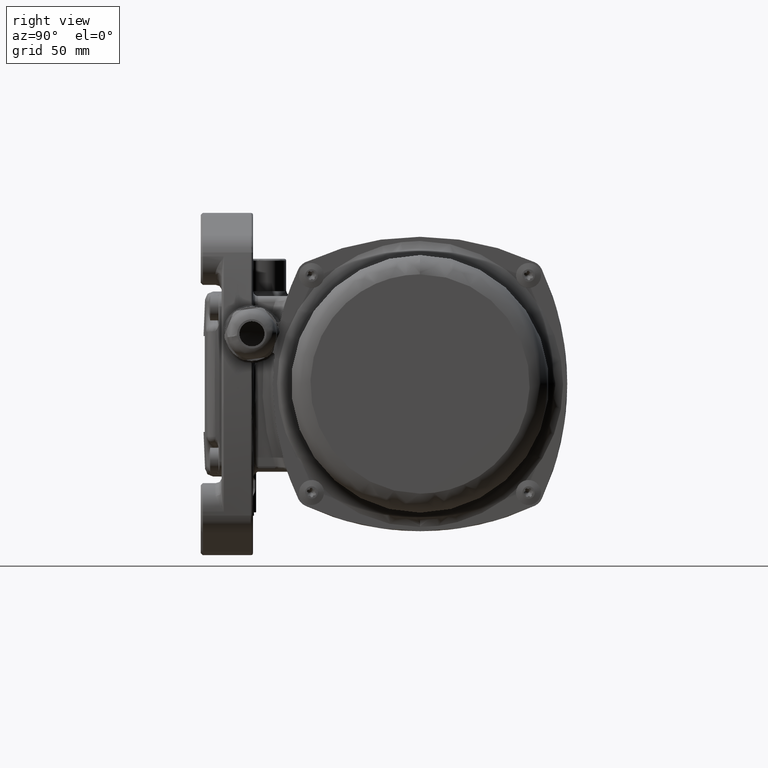
[diagram: clean part render]
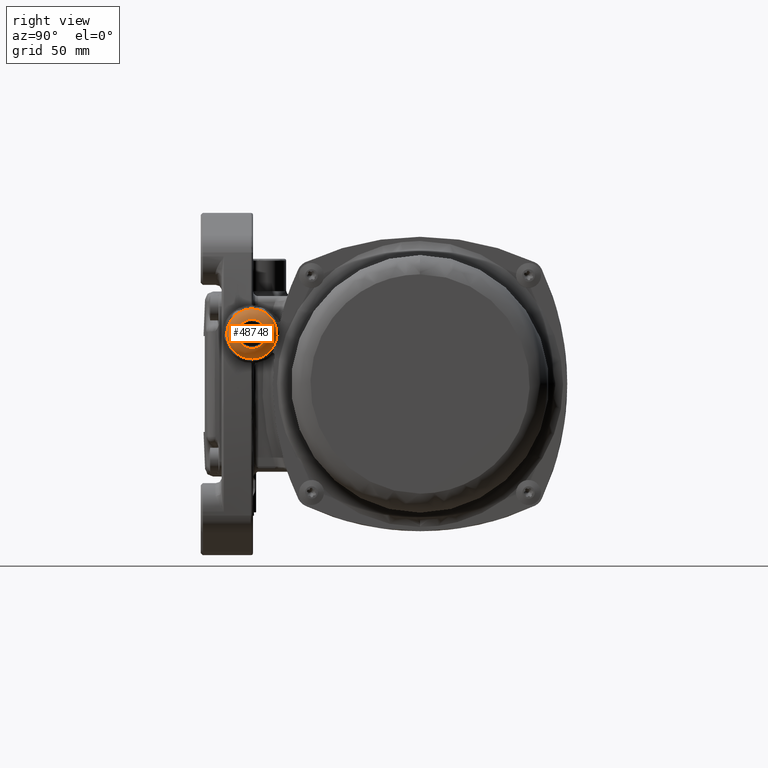
[diagram: same view with one face highlighted and labeled with its STEP entity id]
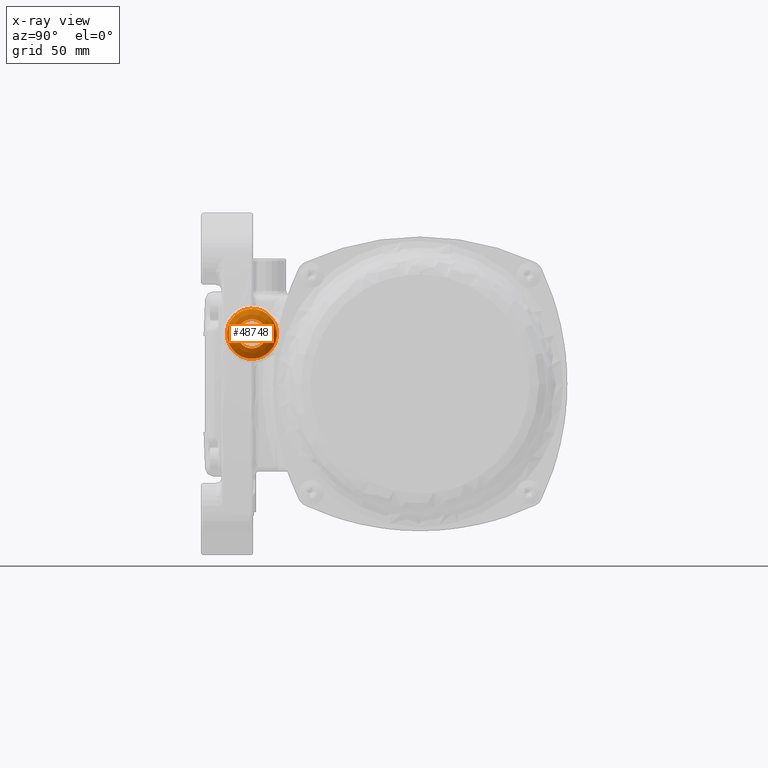
[diagram: x-ray of the same camera — body ghosted, the highlighted face saturated]
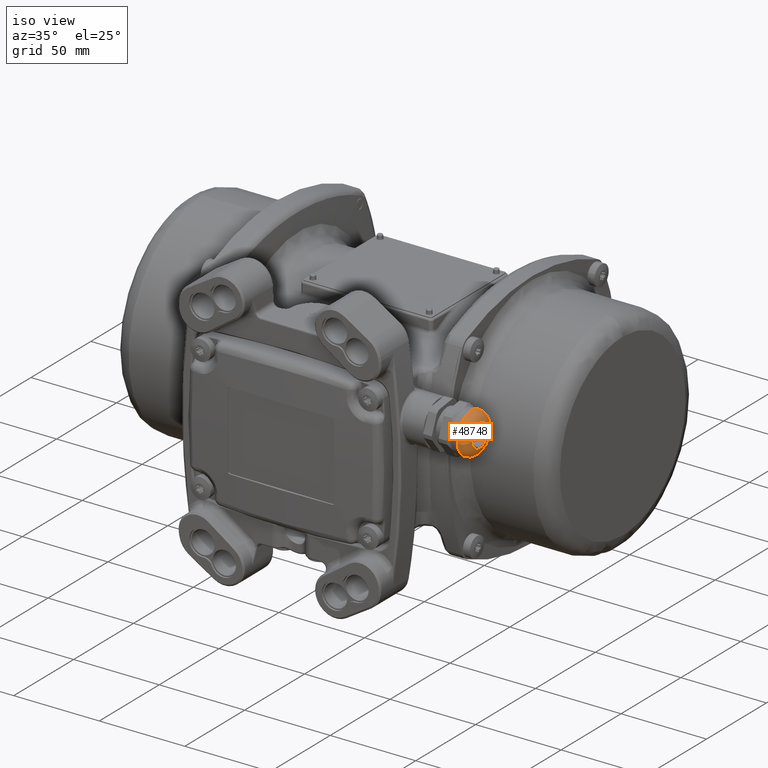
[diagram: same view with one face highlighted and labeled with its STEP entity id]
A machine part, right view. The second image highlights one B-rep face of the part: STEP entity #48748.
The next image is the same camera in x-ray: the body ghosted, the highlighted face saturated — about 0% of this face is hidden behind the body in this view.
A second angle (iso view) of the same face is appended — the face is thin or edge-on in the first view.
In plain terms, the highlighted face is a freeform B-spline surface patch.
Its self-contained STEP definition (entity closure, byte-faithful):
#1626 = CARTESIAN_POINT ( 'NONE',  ( 98.42893218813453900, 33.16551322578580900, 49.39505622229919600 ) ) ;
#1945 = DIRECTION ( 'NONE',  ( 0.0000000000000000000, -0.9909270945063991500, -0.1344004961787937400 ) ) ;
#2407 = CARTESIAN_POINT ( 'NONE',  ( 100.5000000000000000, 31.43648966154474800, 24.94080347325159900 ) ) ;
#3978 = CARTESIAN_POINT ( 'NONE',  ( 98.42893218813453900, 39.61673704236788000, 1.830555685991833700 ) ) ;
#4239 = AXIS2_PLACEMENT_3D ( 'NONE', #27040, #91077, #1945 ) ;
#6187 = CARTESIAN_POINT ( 'NONE',  ( 100.5000000000000000, 17.56351033845514900, 23.05919652674845100 ) ) ;
#7119 = EDGE_LOOP ( 'NONE', ( #109454 ) ) ;
#8445 = CARTESIAN_POINT ( 'NONE',  ( 100.5000000000000000, 15.68190339195205000, 36.93217584983815300 ) ) ;
#8928 =( BOUNDED_CURVE ( )  B_SPLINE_CURVE ( 3, ( #2407, #38950, #64039, #116676 ),
 .UNSPECIFIED., .F., .F. ) 
 B_SPLINE_CURVE_WITH_KNOTS ( ( 4, 4 ),
 ( 0.0000000000000000000, 1.000000000000000000 ),
 .UNSPECIFIED. ) 
 CURVE ( )  GEOMETRIC_REPRESENTATION_ITEM ( )  RATIONAL_B_SPLINE_CURVE ( ( 1.000000000000000000, 0.3333333333333327600, 0.3333333333333327600, 1.000000000000000000 ) ) 
 REPRESENTATION_ITEM ( '' )  );
#13016 = CARTESIAN_POINT ( 'NONE',  ( 98.42893218813453900, 9.383262957632123100, 46.16944431400816700 ) ) ;
#17618 = CARTESIAN_POINT ( 'NONE',  ( 100.5000000000000000, 17.56351033845514900, 23.05919652674845100 ) ) ;
#22235 = CARTESIAN_POINT ( 'NONE',  ( 95.50000000000000000, 12.60887486592315600, 22.38719404585448200 ) ) ;
#24482 = CARTESIAN_POINT ( 'NONE',  ( 100.5000000000000100, 11.99224525003899400, 42.34324243686766200 ) ) ;
#25620 = CARTESIAN_POINT ( 'NONE',  ( 95.50000000000000000, 12.60887486592321200, 22.38719404585447500 ) ) ;
#26288 = CARTESIAN_POINT ( 'NONE',  ( 100.5000000000000000, 15.68190339195199100, 36.93217584983814600 ) ) ;
#26724 = CARTESIAN_POINT ( 'NONE',  ( 98.42893218813453900, 12.60887486592315400, 22.38719404585448200 ) ) ;
#27040 = CARTESIAN_POINT ( 'NONE',  ( 95.50000000000000000, 24.50000000000000000, 24.00000000000000000 ) ) ;
#27503 = EDGE_CURVE ( 'NONE', #91873, #91873, #105645, .T. ) ;
#29094 = CARTESIAN_POINT ( 'NONE',  ( 100.5000000000000100, 14.66115207526073800, 22.66554658738913400 ) ) ;
#31311 = CARTESIAN_POINT ( 'NONE',  ( 100.5000000000000100, 14.66115207526073800, 22.66554658738913400 ) ) ;
#33666 = CARTESIAN_POINT ( 'NONE',  ( 100.5000000000000000, 29.55488271504174900, 38.81378279634125100 ) ) ;
#35883 = CARTESIAN_POINT ( 'NONE',  ( 100.5000000000000100, 37.00775474996100200, 5.656757563132344100 ) ) ;
#38147 = CARTESIAN_POINT ( 'NONE',  ( 98.42893218813453900, 12.60887486592315400, 22.38719404585448200 ) ) ;
#38950 = CARTESIAN_POINT ( 'NONE',  ( 100.5000000000000000, 33.31809660804798100, 11.06782415016183800 ) ) ;
#39866 =( BOUNDED_CURVE ( )  B_SPLINE_CURVE ( 3, ( #108507, #26288, #46813, #117687 ),
 .UNSPECIFIED., .F., .F. ) 
 B_SPLINE_CURVE_WITH_KNOTS ( ( 4, 4 ),
 ( 0.0000000000000000000, 1.000000000000000000 ),
 .UNSPECIFIED. ) 
 CURVE ( )  GEOMETRIC_REPRESENTATION_ITEM ( )  RATIONAL_B_SPLINE_CURVE ( ( 1.000000000000000000, 0.3333333333333324800, 0.3333333333333324800, 1.000000000000000000 ) ) 
 REPRESENTATION_ITEM ( '' )  );
#40542 = CARTESIAN_POINT ( 'NONE',  ( 95.50000000000000000, 9.383262957632121400, 46.16944431400816700 ) ) ;
#44110 = VERTEX_POINT ( 'NONE', #59289 ) ;
#45016 = CARTESIAN_POINT ( 'NONE',  ( 100.5000000000000000, 19.44511728495825100, 9.186217203658749500 ) ) ;
#46813 = CARTESIAN_POINT ( 'NONE',  ( 100.5000000000000000, 29.55488271504172800, 38.81378279634128600 ) ) ;
#48748 = ADVANCED_FACE ( 'NONE', ( #61005, #54193 ), #128185, .T. ) ;
#49944 = VERTEX_POINT ( 'NONE', #138849 ) ;
#54193 = FACE_OUTER_BOUND ( 'NONE', #7119, .T. ) ;
#54451 = EDGE_CURVE ( 'NONE', #49944, #44110, #39866, .T. ) ;
#58780 = CARTESIAN_POINT ( 'NONE',  ( 95.50000000000000000, 33.16551322578580100, 49.39505622229918900 ) ) ;
#59289 = CARTESIAN_POINT ( 'NONE',  ( 100.5000000000000000, 31.43648966154474800, 24.94080347325159900 ) ) ;
#61005 = FACE_OUTER_BOUND ( 'NONE', #136852, .T. ) ;
#61681 = EDGE_CURVE ( 'NONE', #44110, #49944, #8928, .T. ) ;
#64039 = CARTESIAN_POINT ( 'NONE',  ( 100.5000000000000000, 19.44511728495825400, 9.186217203658726400 ) ) ;
#65591 = CARTESIAN_POINT ( 'NONE',  ( 100.5000000000000100, 31.66994109951751900, 45.01214926208939500 ) ) ;
#65771 = ORIENTED_EDGE ( 'NONE', *, *, #54451, .T. ) ;
#67825 = CARTESIAN_POINT ( 'NONE',  ( 95.50000000000000000, 12.60887486592315600, 22.38719404585448200 ) ) ;
#70190 = CARTESIAN_POINT ( 'NONE',  ( 98.42893218813453900, 15.83448677421419100, -1.395056222299208900 ) ) ;
#74578 = ORIENTED_EDGE ( 'NONE', *, *, #61681, .T. ) ;
#79310 = CARTESIAN_POINT ( 'NONE',  ( 100.5000000000000000, 33.31809660804795200, 11.06782415016184900 ) ) ;
#83936 = CARTESIAN_POINT ( 'NONE',  ( 98.42893218813453900, 36.39112513407684400, 25.61280595414551400 ) ) ;
#90764 = CARTESIAN_POINT ( 'NONE',  ( 100.5000000000000100, 34.33884792473926200, 25.33445341261087000 ) ) ;
#91077 = DIRECTION ( 'NONE',  ( 1.000000000000000000, -3.081487911019565000E-033, 0.0000000000000000000 ) ) ;
#91873 = VERTEX_POINT ( 'NONE', #25620 ) ;
#92983 = CARTESIAN_POINT ( 'NONE',  ( 95.50000000000000000, 15.83448677421419100, -1.395056222299209100 ) ) ;
#102189 = CARTESIAN_POINT ( 'NONE',  ( 95.50000000000000000, 39.61673704236787300, 1.830555685991833900 ) ) ;
#104432 = CARTESIAN_POINT ( 'NONE',  ( 100.5000000000000000, 31.43648966154485100, 24.94080347325154900 ) ) ;
#105645 = CIRCLE ( 'NONE', #4239, 12.00000000000000000 ) ;
#108507 = CARTESIAN_POINT ( 'NONE',  ( 100.5000000000000000, 17.56351033845514900, 23.05919652674845100 ) ) ;
#109454 = ORIENTED_EDGE ( 'NONE', *, *, #27503, .T. ) ;
#116676 = CARTESIAN_POINT ( 'NONE',  ( 100.5000000000000000, 17.56351033845514900, 23.05919652674845100 ) ) ;
#117687 = CARTESIAN_POINT ( 'NONE',  ( 100.5000000000000000, 31.43648966154474800, 24.94080347325159900 ) ) ;
#118139 = CARTESIAN_POINT ( 'NONE',  ( 95.50000000000000000, 36.39112513407684400, 25.61280595414551800 ) ) ;
#124998 = CARTESIAN_POINT ( 'NONE',  ( 100.5000000000000100, 17.33005890048247400, 2.987850737910601000 ) ) ;
#128185 =( BOUNDED_SURFACE ( )  B_SPLINE_SURFACE ( 3, 3, ( 
 ( #6187, #45016, #79310, #104432, #33666, #8445, #17618 ),
 ( #29094, #124998, #35883, #90764, #65591, #24482, #31311 ),
 ( #38147, #70190, #3978, #83936, #1626, #13016, #26724 ),
 ( #22235, #92983, #102189, #118139, #58780, #40542, #67825 ) ),
 .UNSPECIFIED., .F., .T., .F. ) 
 B_SPLINE_SURFACE_WITH_KNOTS ( ( 4, 4 ),
 ( 4, 3, 4 ),
 ( 0.0000000000000000000, 1.000000000000000000 ),
 ( 0.0000000000000000000, 0.5000000000000000000, 1.000000000000000000 ),
 .UNSPECIFIED. ) 
 GEOMETRIC_REPRESENTATION_ITEM ( )  RATIONAL_B_SPLINE_SURFACE ( (
 ( 1.000000000000000000, 0.3333333333333333100, 0.3333333333333333100, 1.000000000000000000, 0.3333333333333333100, 0.3333333333333333100, 1.000000000000000000),
 ( 0.8047378541243649400, 0.2682459513747882900, 0.2682459513747882900, 0.8047378541243649400, 0.2682459513747882900, 0.2682459513747882900, 0.8047378541243649400),
 ( 0.8047378541243649400, 0.2682459513747882900, 0.2682459513747882900, 0.8047378541243649400, 0.2682459513747882900, 0.2682459513747882900, 0.8047378541243649400),
 ( 1.000000000000000000, 0.3333333333333333100, 0.3333333333333333100, 1.000000000000000000, 0.3333333333333333100, 0.3333333333333333100, 1.000000000000000000) ) ) 
 REPRESENTATION_ITEM ( '' )  SURFACE ( )  );
#136852 = EDGE_LOOP ( 'NONE', ( #65771, #74578 ) ) ;
#138849 = CARTESIAN_POINT ( 'NONE',  ( 100.5000000000000000, 17.56351033845514900, 23.05919652674845100 ) ) ;